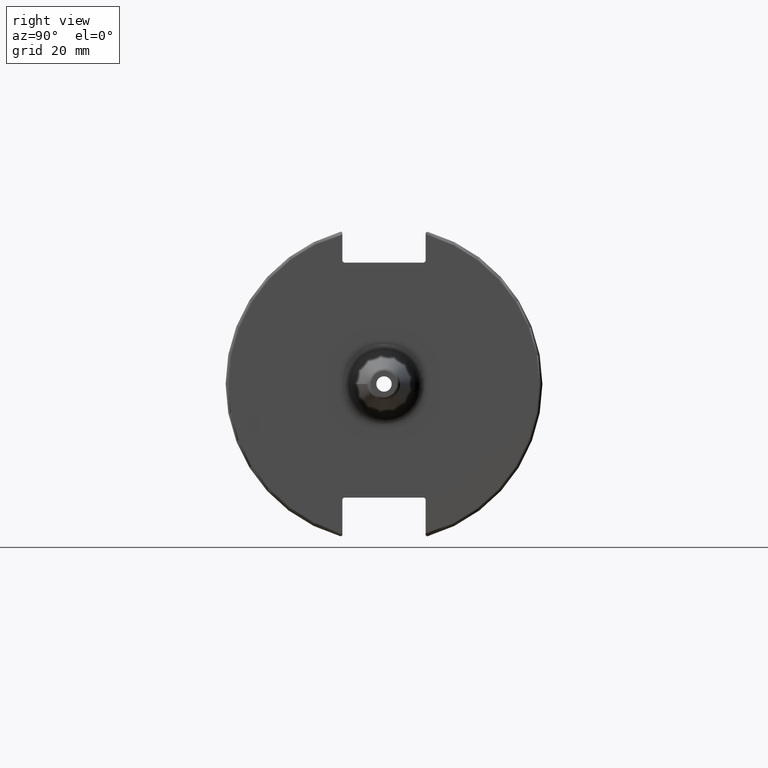
[diagram: clean part render]
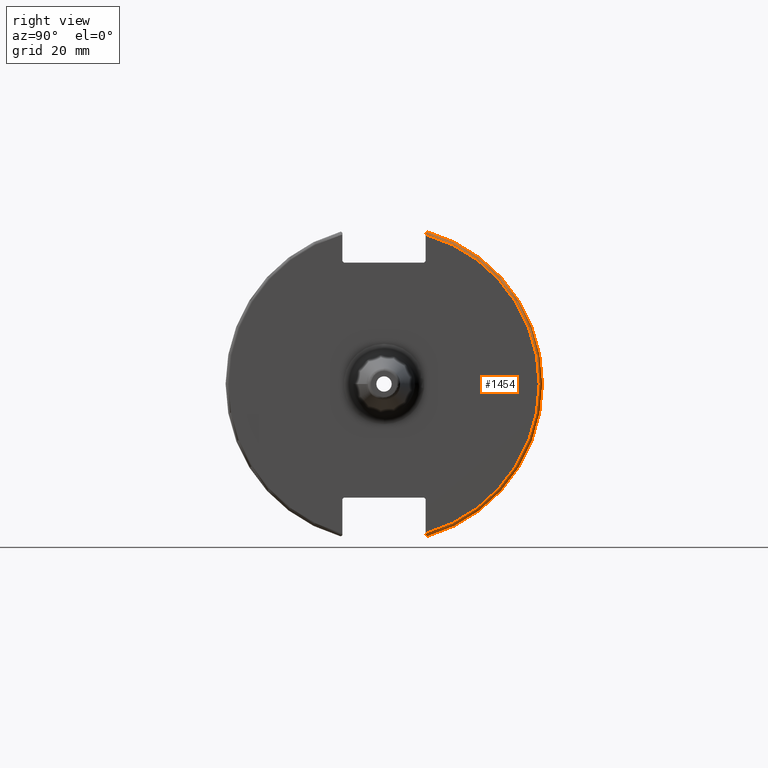
[diagram: same view with one face highlighted and labeled with its STEP entity id]
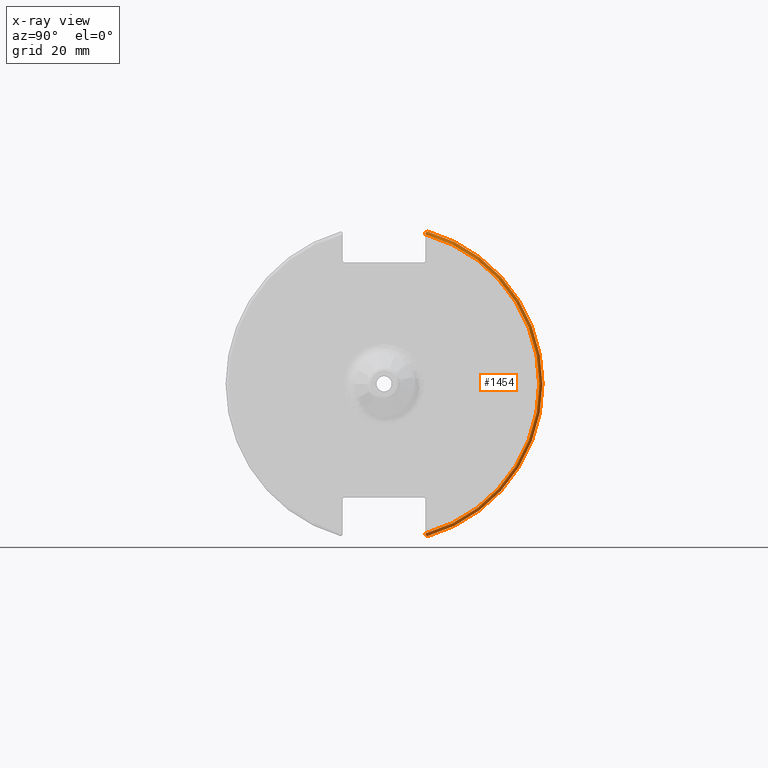
[diagram: x-ray of the same camera — body ghosted, the highlighted face saturated]
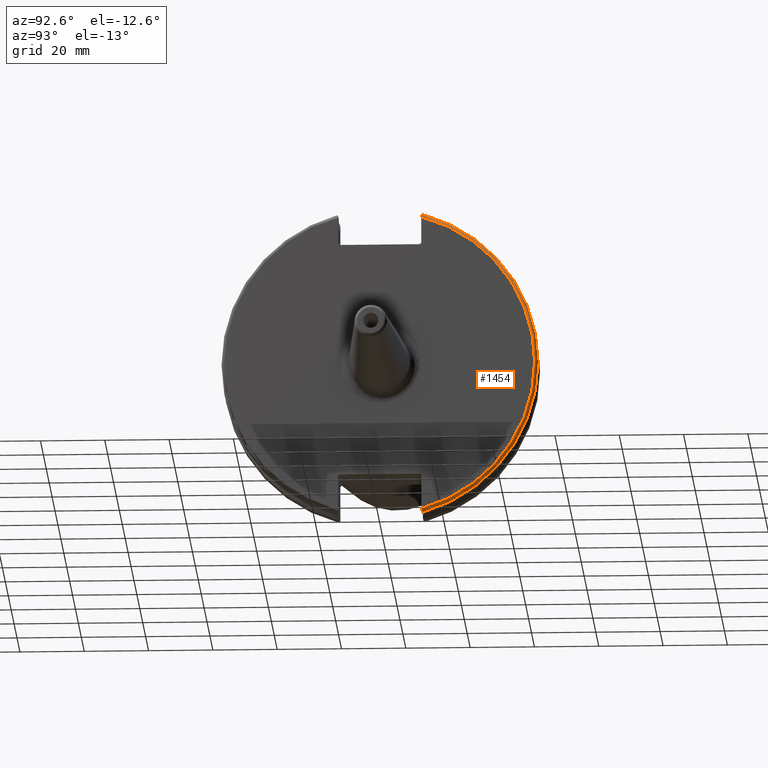
[diagram: same view with one face highlighted and labeled with its STEP entity id]
A machine part, right view. The second image highlights one B-rep face of the part: STEP entity #1454.
The next image is the same camera in x-ray: the body ghosted, the highlighted face saturated — about 0% of this face is hidden behind the body in this view.
A second angle (auxiliary view) of the same face is appended — the face is thin or edge-on in the first view.
In plain terms, the highlighted toroidal blend (fillet) surface has major radius 48.2125 mm and minor (blend) radius 1 mm.
Its self-contained STEP definition (entity closure, byte-faithful):
#55=B_SPLINE_CURVE_WITH_KNOTS('',3,(#2728,#2729,#2730,#2731,#2732,#2733),
 .UNSPECIFIED.,.F.,.F.,(4,2,4),(0.0976892167532868,0.112000071948293,0.150881870548587),
 .UNSPECIFIED.);
#56=B_SPLINE_CURVE_WITH_KNOTS('',3,(#2735,#2736,#2737,#2738,#2739,#2740),
 .UNSPECIFIED.,.F.,.F.,(4,2,4),(0.452859340315922,0.491741138916218,0.506051994111223),
 .UNSPECIFIED.);
#57=B_SPLINE_CURVE_WITH_KNOTS('',3,(#2742,#2743,#2744,#2745,#2746,#2747,
#2748,#2749),.UNSPECIFIED.,.F.,.F.,(4,2,2,4),(-0.104197480645881,-0.0778720357014994,
-0.0364336453281809,0.),.UNSPECIFIED.);
#58=B_SPLINE_CURVE_WITH_KNOTS('',3,(#2752,#2753,#2754,#2755,#2756,#2757,
#2758,#2759),.UNSPECIFIED.,.F.,.F.,(4,2,2,4),(0.,0.0364336453281816,0.0778720357014993,
0.104197480645882),.UNSPECIFIED.);
#388=FACE_OUTER_BOUND('',#486,.T.);
#486=EDGE_LOOP('',(#1187,#1188,#1189,#1190,#1191,#1192));
#542=CIRCLE('',#1536,48.2125);
#581=CIRCLE('',#1612,49.2125);
#611=VERTEX_POINT('',#2109);
#612=VERTEX_POINT('',#2110);
#709=VERTEX_POINT('',#2727);
#710=VERTEX_POINT('',#2734);
#711=VERTEX_POINT('',#2741);
#712=VERTEX_POINT('',#2750);
#761=EDGE_CURVE('',#611,#612,#542,.T.);
#886=EDGE_CURVE('',#709,#611,#55,.T.);
#887=EDGE_CURVE('',#612,#710,#56,.T.);
#888=EDGE_CURVE('',#710,#711,#57,.T.);
#889=EDGE_CURVE('',#711,#712,#581,.T.);
#890=EDGE_CURVE('',#712,#709,#58,.T.);
#1187=ORIENTED_EDGE('',*,*,#886,.T.);
#1188=ORIENTED_EDGE('',*,*,#761,.T.);
#1189=ORIENTED_EDGE('',*,*,#887,.T.);
#1190=ORIENTED_EDGE('',*,*,#888,.T.);
#1191=ORIENTED_EDGE('',*,*,#889,.T.);
#1192=ORIENTED_EDGE('',*,*,#890,.T.);
#1409=TOROIDAL_SURFACE('',#1611,48.2125,1.);
#1454=ADVANCED_FACE('',(#388),#1409,.T.);
#1536=AXIS2_PLACEMENT_3D('',#2111,#1712,#1713);
#1611=AXIS2_PLACEMENT_3D('',#2726,#1916,#1917);
#1612=AXIS2_PLACEMENT_3D('',#2751,#1918,#1919);
#1712=DIRECTION('center_axis',(-1.,0.,0.));
#1713=DIRECTION('ref_axis',(0.,1.,-6.12323399573677E-17));
#1916=DIRECTION('center_axis',(1.,0.,0.));
#1917=DIRECTION('ref_axis',(0.,0.,-1.));
#1918=DIRECTION('center_axis',(1.,0.,0.));
#1919=DIRECTION('ref_axis',(0.,1.,-6.12323399573677E-17));
#2109=CARTESIAN_POINT('',(19.05,12.95,46.4407434937254));
#2110=CARTESIAN_POINT('',(19.05,12.95,-46.4407434937254));
#2111=CARTESIAN_POINT('Origin',(19.05,0.,0.));
#2726=CARTESIAN_POINT('Origin',(18.05,0.,0.));
#2727=CARTESIAN_POINT('',(18.9055020570566,12.95,46.9780755322918));
#2728=CARTESIAN_POINT('Ctrl Pts',(18.9055020570566,12.95,46.9780755322918));
#2729=CARTESIAN_POINT('Ctrl Pts',(18.9315844351616,12.95,46.9333752207329));
#2730=CARTESIAN_POINT('Ctrl Pts',(18.9538432708766,12.95,46.887363294568));
#2731=CARTESIAN_POINT('Ctrl Pts',(19.0204646992875,12.95,46.7230464903732));
#2732=CARTESIAN_POINT('Ctrl Pts',(19.05,12.95,46.5703494890597));
#2733=CARTESIAN_POINT('Ctrl Pts',(19.05,12.95,46.4407434937254));
#2734=CARTESIAN_POINT('',(18.9055020570566,12.95,-46.9780755322918));
#2735=CARTESIAN_POINT('Ctrl Pts',(19.05,12.95,-46.4407434937254));
#2736=CARTESIAN_POINT('Ctrl Pts',(19.05,12.95,-46.5703494890597));
#2737=CARTESIAN_POINT('Ctrl Pts',(19.0204646992875,12.95,-46.7230464903732));
#2738=CARTESIAN_POINT('Ctrl Pts',(18.9538432708766,12.95,-46.887363294568));
#2739=CARTESIAN_POINT('Ctrl Pts',(18.9315844351616,12.95,-46.9333752207329));
#2740=CARTESIAN_POINT('Ctrl Pts',(18.9055020570566,12.95,-46.9780755322918));
#2741=CARTESIAN_POINT('',(18.05,13.4317035994433,-47.3440544806494));
#2742=CARTESIAN_POINT('Ctrl Pts',(18.9055020570566,12.95,-46.9780755322918));
#2743=CARTESIAN_POINT('Ctrl Pts',(18.8641312352177,13.0184763978125,-47.0301011349397));
#2744=CARTESIAN_POINT('Ctrl Pts',(18.811782280389,13.0847856162862,-47.0804802022157));
#2745=CARTESIAN_POINT('Ctrl Pts',(18.6710431007969,13.22546375702,-47.1873617743322));
#2746=CARTESIAN_POINT('Ctrl Pts',(18.54495745946,13.3111366376071,-47.2524525703658));
#2747=CARTESIAN_POINT('Ctrl Pts',(18.3128758164404,13.4037095171132,-47.3227857070234));
#2748=CARTESIAN_POINT('Ctrl Pts',(18.1714454844273,13.4317035994433,-47.3440544806494));
#2749=CARTESIAN_POINT('Ctrl Pts',(18.05,13.4317035994433,-47.3440544806494));
#2750=CARTESIAN_POINT('',(18.05,13.4317035994433,47.3440544806494));
#2751=CARTESIAN_POINT('Origin',(18.05,0.,0.));
#2752=CARTESIAN_POINT('Ctrl Pts',(18.05,13.4317035994433,47.3440544806494));
#2753=CARTESIAN_POINT('Ctrl Pts',(18.1714454844273,13.4317035994433,47.3440544806494));
#2754=CARTESIAN_POINT('Ctrl Pts',(18.3128758164404,13.4037095171132,47.3227857070234));
#2755=CARTESIAN_POINT('Ctrl Pts',(18.54495745946,13.3111366376071,47.2524525703658));
#2756=CARTESIAN_POINT('Ctrl Pts',(18.6710431007969,13.2254637570201,47.1873617743322));
#2757=CARTESIAN_POINT('Ctrl Pts',(18.811782280389,13.0847856162862,47.0804802022157));
#2758=CARTESIAN_POINT('Ctrl Pts',(18.8641312352177,13.0184763978125,47.0301011349397));
#2759=CARTESIAN_POINT('Ctrl Pts',(18.9055020570566,12.95,46.9780755322918));